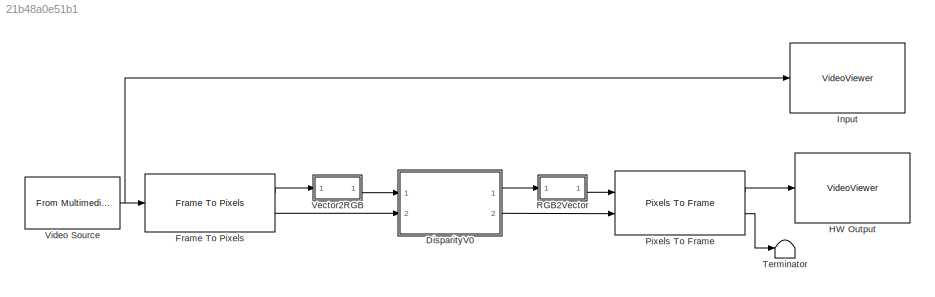
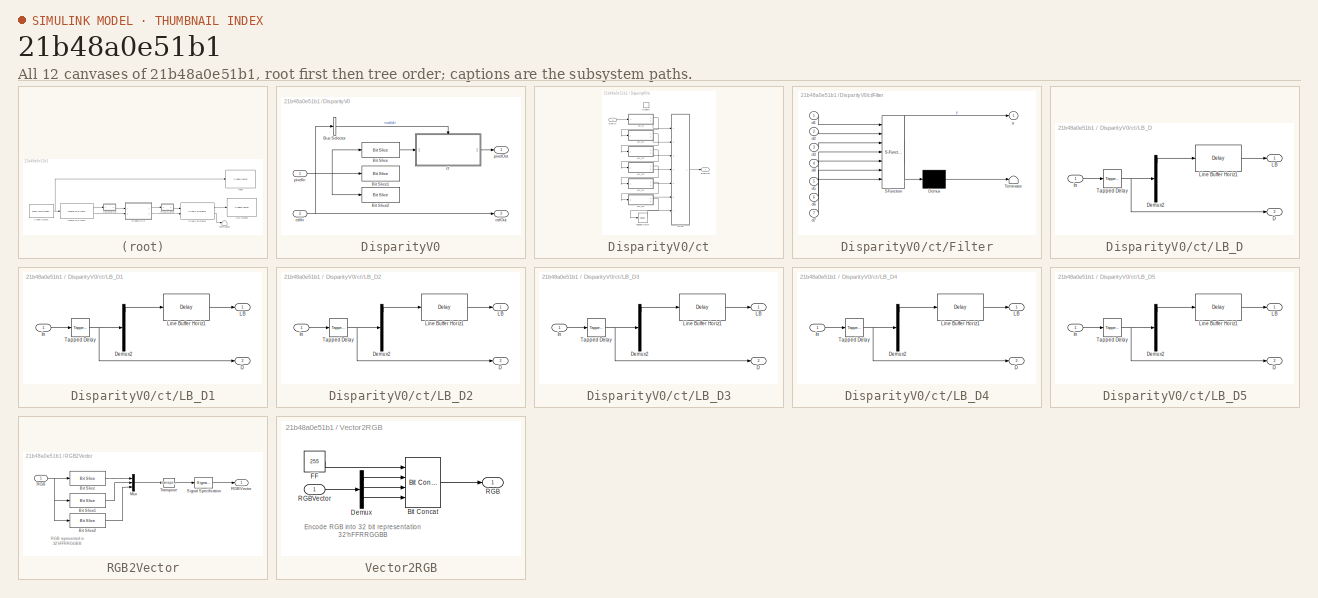
[diagram: thumbnail index - all 12 canvases of the model, root first then tree order]
MODEL slx_21b48a0e51b1
KIND model
CONFIG AbsTol = auto
CONFIG EnableMultiTasking = off
CONFIG FixedStep = auto
CONFIG InitFcn = Ts = 1e-3;\nTs_240p = 402*324*Ts;\nTs_480p = 525*800*Ts;\n\n
CONFIG MaxStep = auto
CONFIG MinStep = auto
CONFIG RelTol = 1e-3
CONFIG SampleTimeConstraint = Unconstrained
CONFIG SolverName = VariableStepAuto
CONFIG StartTime = 0.0
CONFIG StopTime = Ts_480p*2
BLOCK [SubSystem] DisparityV0
  Ports = [2, 2]
  RequestExecContextInheritance = off
  TreatAsAtomicUnit = on
BLOCK [Reference] DisparityV0/Bit Slice  REF=hdlsllib/Logic and Bit
Operations/Bit Slice
  Ports = [1, 1]
  SourceBlock = hdlsllib/Logic and Bit\nOperations/Bit Slice
  SourceProductBaseCode = SL
  SourceType = Bit Slice
BLOCK [Reference] DisparityV0/Bit Slice1  REF=hdlsllib/Logic and Bit
Operations/Bit Slice
  Ports = [1, 1]
  SourceBlock = hdlsllib/Logic and Bit\nOperations/Bit Slice
  SourceProductBaseCode = SL
  SourceType = Bit Slice
BLOCK [Reference] DisparityV0/Bit Slice2  REF=hdlsllib/Logic and Bit
Operations/Bit Slice
  Ports = [1, 1]
  SourceBlock = hdlsllib/Logic and Bit\nOperations/Bit Slice
  SourceProductBaseCode = SL
  SourceType = Bit Slice
BLOCK [BusSelector] DisparityV0/Bus Selector
  OutputSignals = valid
  Ports = [1, 1]
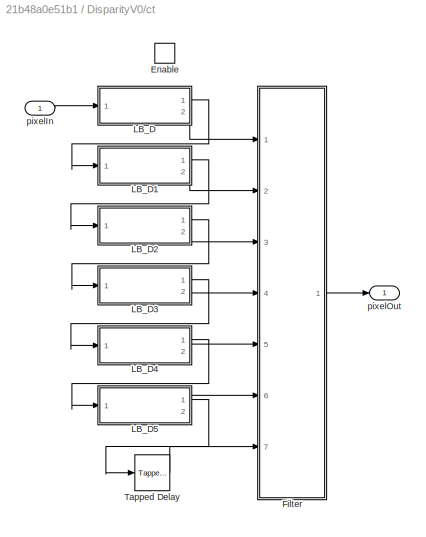
BLOCK [SubSystem] DisparityV0/ct
  Ports = [1, 1, 1]
  RequestExecContextInheritance = off
BLOCK [EnablePort] DisparityV0/ct/Enable
  Ports = []
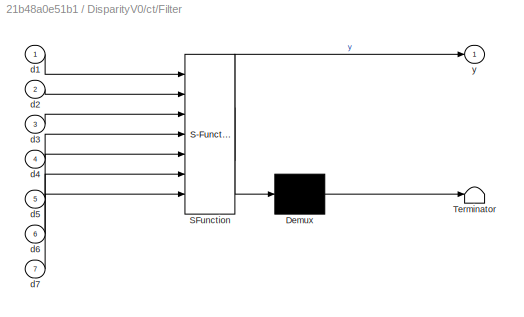
BLOCK [SubSystem] DisparityV0/ct/Filter
  ErrorFcn = Stateflow.Translate.translate
  PermitHierarchicalResolution = ExplicitOnly
  Ports = [7, 1]
  RequestExecContextInheritance = off
  SFBlockType = MATLAB Function
  TreatAsAtomicUnit = on
BLOCK [Demux] DisparityV0/ct/Filter/ Demux 
  Outputs = 1
  Ports = [1, 1]
BLOCK [S-Function] DisparityV0/ct/Filter/ SFunction 
  EnableBusSupport = on
  FunctionName = sf_sfun
  PortCounts = [7 2]
  Ports = [7, 2]
  SFcnIsStateOwnerBlock = off
  SFunctionDeploymentMode = off
  Tag = Stateflow S-Function 2
BLOCK [Terminator] DisparityV0/ct/Filter/ Terminator 
BLOCK [Inport] DisparityV0/ct/Filter/d1
BLOCK [Inport] DisparityV0/ct/Filter/d2
  Port = 2
BLOCK [Inport] DisparityV0/ct/Filter/d3
  Port = 3
BLOCK [Inport] DisparityV0/ct/Filter/d4
  Port = 4
BLOCK [Inport] DisparityV0/ct/Filter/d5
  Port = 5
BLOCK [Inport] DisparityV0/ct/Filter/d6
  Port = 6
BLOCK [Inport] DisparityV0/ct/Filter/d7
  Port = 7
BLOCK [Outport] DisparityV0/ct/Filter/y
BLOCK [SubSystem] DisparityV0/ct/LB_D
  Ports = [1, 2]
  RequestExecContextInheritance = off
BLOCK [Outport] DisparityV0/ct/LB_D/D
  Port = 2
BLOCK [Demux] DisparityV0/ct/LB_D/Demux2
  DisplayOption = none
  Outputs = 5
  Ports = [1, 5]
BLOCK [Inport] DisparityV0/ct/LB_D/In
BLOCK [Outport] DisparityV0/ct/LB_D/LB
BLOCK [Delay] DisparityV0/ct/LB_D/Line Buffer Horiz1
  DelayLength = 632
  InitialCondition = 0
  InputPortMap = u0
  Ports = [1, 1]
BLOCK [Reference] DisparityV0/ct/LB_D/Tapped Delay  REF=simulink/Discrete/Tapped Delay
  Ports = [1, 1]
  SourceBlock = simulink/Discrete/Tapped Delay
  SourceProductBaseCode = SL
  SourceType = Tapped Delay Line
BLOCK [SubSystem] DisparityV0/ct/LB_D1
  Ports = [1, 2]
  RequestExecContextInheritance = off
BLOCK [Outport] DisparityV0/ct/LB_D1/D
  Port = 2
BLOCK [Demux] DisparityV0/ct/LB_D1/Demux2
  DisplayOption = none
  Outputs = 5
  Ports = [1, 5]
BLOCK [Inport] DisparityV0/ct/LB_D1/In
BLOCK [Outport] DisparityV0/ct/LB_D1/LB
BLOCK [Delay] DisparityV0/ct/LB_D1/Line Buffer Horiz1
  DelayLength = 632
  InitialCondition = 0
  InputPortMap = u0
  Ports = [1, 1]
BLOCK [Reference] DisparityV0/ct/LB_D1/Tapped Delay  REF=simulink/Discrete/Tapped Delay
  Ports = [1, 1]
  SourceBlock = simulink/Discrete/Tapped Delay
  SourceProductBaseCode = SL
  SourceType = Tapped Delay Line
BLOCK [SubSystem] DisparityV0/ct/LB_D2
  Ports = [1, 2]
  RequestExecContextInheritance = off
BLOCK [Outport] DisparityV0/ct/LB_D2/D
  Port = 2
BLOCK [Demux] DisparityV0/ct/LB_D2/Demux2
  DisplayOption = none
  Outputs = 5
  Ports = [1, 5]
BLOCK [Inport] DisparityV0/ct/LB_D2/In
BLOCK [Outport] DisparityV0/ct/LB_D2/LB
BLOCK [Delay] DisparityV0/ct/LB_D2/Line Buffer Horiz1
  DelayLength = 632
  InitialCondition = 0
  InputPortMap = u0
  Ports = [1, 1]
BLOCK [Reference] DisparityV0/ct/LB_D2/Tapped Delay  REF=simulink/Discrete/Tapped Delay
  Ports = [1, 1]
  SourceBlock = simulink/Discrete/Tapped Delay
  SourceProductBaseCode = SL
  SourceType = Tapped Delay Line
BLOCK [SubSystem] DisparityV0/ct/LB_D3
  Ports = [1, 2]
  RequestExecContextInheritance = off
BLOCK [Outport] DisparityV0/ct/LB_D3/D
  Port = 2
BLOCK [Demux] DisparityV0/ct/LB_D3/Demux2
  DisplayOption = none
  Outputs = 5
  Ports = [1, 5]
BLOCK [Inport] DisparityV0/ct/LB_D3/In
BLOCK [Outport] DisparityV0/ct/LB_D3/LB
BLOCK [Delay] DisparityV0/ct/LB_D3/Line Buffer Horiz1
  DelayLength = 632
  InitialCondition = 0
  InputPortMap = u0
  Ports = [1, 1]
BLOCK [Reference] DisparityV0/ct/LB_D3/Tapped Delay  REF=simulink/Discrete/Tapped Delay
  Ports = [1, 1]
  SourceBlock = simulink/Discrete/Tapped Delay
  SourceProductBaseCode = SL
  SourceType = Tapped Delay Line
BLOCK [SubSystem] DisparityV0/ct/LB_D4
  Ports = [1, 2]
  RequestExecContextInheritance = off
BLOCK [Outport] DisparityV0/ct/LB_D4/D
  Port = 2
BLOCK [Demux] DisparityV0/ct/LB_D4/Demux2
  DisplayOption = none
  Outputs = 5
  Ports = [1, 5]
BLOCK [Inport] DisparityV0/ct/LB_D4/In
BLOCK [Outport] DisparityV0/ct/LB_D4/LB
BLOCK [Delay] DisparityV0/ct/LB_D4/Line Buffer Horiz1
  DelayLength = 632
  InitialCondition = 0
  InputPortMap = u0
  Ports = [1, 1]
BLOCK [Reference] DisparityV0/ct/LB_D4/Tapped Delay  REF=simulink/Discrete/Tapped Delay
  Ports = [1, 1]
  SourceBlock = simulink/Discrete/Tapped Delay
  SourceProductBaseCode = SL
  SourceType = Tapped Delay Line
BLOCK [SubSystem] DisparityV0/ct/LB_D5
  Ports = [1, 2]
  RequestExecContextInheritance = off
BLOCK [Outport] DisparityV0/ct/LB_D5/D
  Port = 2
BLOCK [Demux] DisparityV0/ct/LB_D5/Demux2
  DisplayOption = none
  Outputs = 5
  Ports = [1, 5]
BLOCK [Inport] DisparityV0/ct/LB_D5/In
BLOCK [Outport] DisparityV0/ct/LB_D5/LB
BLOCK [Delay] DisparityV0/ct/LB_D5/Line Buffer Horiz1
  DelayLength = 632
  InitialCondition = 0
  InputPortMap = u0
  Ports = [1, 1]
BLOCK [Reference] DisparityV0/ct/LB_D5/Tapped Delay  REF=simulink/Discrete/Tapped Delay
  Ports = [1, 1]
  SourceBlock = simulink/Discrete/Tapped Delay
  SourceProductBaseCode = SL
  SourceType = Tapped Delay Line
BLOCK [Reference] DisparityV0/ct/Tapped Delay  REF=simulink/Discrete/Tapped Delay
  Ports = [1, 1]
  SourceBlock = simulink/Discrete/Tapped Delay
  SourceProductBaseCode = SL
  SourceType = Tapped Delay Line
BLOCK [Inport] DisparityV0/ct/pixelIn
BLOCK [Outport] DisparityV0/ct/pixelOut
  InitialOutput = 0
BLOCK [Inport] DisparityV0/ctrlIn
  Port = 2
BLOCK [Outport] DisparityV0/ctrlOut
  Port = 2
  VectorParamsAs1DForOutWhenUnconnected = off
BLOCK [Inport] DisparityV0/pixelIn
BLOCK [Outport] DisparityV0/pixelOut
BLOCK [Reference] Frame To Pixels  REF=visionhdlio/Frame To Pixels
  Ports = [1, 2]
  SourceBlock = visionhdlio/Frame To Pixels
  SourceProductBaseCode = VT
  SourceType = Frame To Pixels
BLOCK [VideoViewer] HW Output
  FigPos = [146 735 588 436]
  Ports = [1]
  ScopeSpecificationString = vipscopes.VideoViewerScopeCfg('CurrentConfiguration', extmgr.ConfigurationSet(extmgr.Configuration('Core','General UI',true),extmgr.Configuration('Core','Source UI',true),extmgr.Configuration('Sources','WiredSimulink',true),extmgr.Configuration('Sources','Streaming',false),extmgr.Configuration('Sources','SimulinkEvent',false),extmgr.Configuration('Sources','Workspace',false),extmgr.Configuration('...<+972ch>
  colormapValue = gray(256)
BLOCK [VideoViewer] Input
  FigPos = [86 739 588 436]
  Ports = [1]
  ScopeSpecificationString = vipscopes.VideoViewerScopeCfg('CurrentConfiguration', extmgr.ConfigurationSet(extmgr.Configuration('Core','General UI',true),extmgr.Configuration('Core','Source UI',true),extmgr.Configuration('Sources','WiredSimulink',true),extmgr.Configuration('Sources','Streaming',false),extmgr.Configuration('Sources','SimulinkEvent',false),extmgr.Configuration('Sources','Workspace',false),extmgr.Configuration('...<+971ch>
  colormapValue = gray(256)
BLOCK [Reference] Pixels To Frame  REF=visionhdlio/Pixels To Frame
  Ports = [2, 2]
  SourceBlock = visionhdlio/Pixels To Frame
  SourceProductBaseCode = VT
  SourceType = Pixels To Frame
BLOCK [SubSystem] RGB2Vector
  Ports = [1, 1]
  RequestExecContextInheritance = off
  ShowPortLabels = none
BLOCK [Reference] RGB2Vector/Bit Slice  REF=hdlsllib/Logic and Bit
Operations/Bit Slice
  Ports = [1, 1]
  SourceBlock = hdlsllib/Logic and Bit\nOperations/Bit Slice
  SourceProductBaseCode = SL
  SourceType = Bit Slice
BLOCK [Reference] RGB2Vector/Bit Slice1  REF=hdlsllib/Logic and Bit
Operations/Bit Slice
  Ports = [1, 1]
  SourceBlock = hdlsllib/Logic and Bit\nOperations/Bit Slice
  SourceProductBaseCode = SL
  SourceType = Bit Slice
BLOCK [Reference] RGB2Vector/Bit Slice2  REF=hdlsllib/Logic and Bit
Operations/Bit Slice
  Ports = [1, 1]
  SourceBlock = hdlsllib/Logic and Bit\nOperations/Bit Slice
  SourceProductBaseCode = SL
  SourceType = Bit Slice
BLOCK [Mux] RGB2Vector/Mux
  DisplayOption = bar
  Inputs = 3
  Ports = [3, 1]
BLOCK [Inport] RGB2Vector/RGB
BLOCK [Outport] RGB2Vector/RGBVector
  VectorParamsAs1DForOutWhenUnconnected = off
BLOCK [SignalSpecification] RGB2Vector/Signal Specification
  SignalType = real
BLOCK [Math] RGB2Vector/Transpose
  Operator = transpose
  Ports = [1, 1]
  SignedPower = on
BLOCK [Terminator] Terminator
BLOCK [SubSystem] Vector2RGB
  Ports = [1, 1]
  RequestExecContextInheritance = off
  ShowPortLabels = none
BLOCK [Reference] Vector2RGB/Bit Concat  REF=hdlsllib/Logic and Bit
Operations/Bit Concat
  Ports = [4, 1]
  SourceBlock = hdlsllib/Logic and Bit\nOperations/Bit Concat
  SourceProductBaseCode = SL
  SourceType = Bit Concat
BLOCK [Demux] Vector2RGB/Demux
  Outputs = 3
  Ports = [1, 3]
BLOCK [Constant] Vector2RGB/FF
  OutDataTypeStr = uint8
  SampleTime = Ts
  Value = 255
BLOCK [Outport] Vector2RGB/RGB
  VectorParamsAs1DForOutWhenUnconnected = off
BLOCK [Inport] Vector2RGB/RGBVector
BLOCK [Reference] Video Source  REF=dspvision/From Multimedia File
  Ports = [0, 1]
  SourceBlock = dspvision/From Multimedia File
  SourceProductBaseCode = DS,HW,VP
  SourceType = From Multimedia File
ANNOTATION RGB2Vector: RGB represented in 32'hFFRRGGBB
ANNOTATION Vector2RGB: Encode RGB into 32 bit representation 32'hFFRRGGBB
LINE DisparityV0/Bit Slice:1 -> DisparityV0/ct:1
LINE DisparityV0/Bus Selector:1 -> DisparityV0/ct:enable
LINE DisparityV0/ct/Filter:1 -> DisparityV0/ct/pixelOut:1
LINE DisparityV0/ct/LB_D/Demux2:1 -> DisparityV0/ct/LB_D/Line Buffer Horiz1:1
LINE DisparityV0/ct/LB_D/In:1 -> DisparityV0/ct/LB_D/Tapped Delay:1
LINE DisparityV0/ct/LB_D/Line Buffer Horiz1:1 -> DisparityV0/ct/LB_D/LB:1
NET DisparityV0/ct/LB_D/Tapped Delay:1 -> DisparityV0/ct/LB_D/D:1, DisparityV0/ct/LB_D/Demux2:1
LINE DisparityV0/ct/LB_D1/Demux2:1 -> DisparityV0/ct/LB_D1/Line Buffer Horiz1:1
LINE DisparityV0/ct/LB_D1/In:1 -> DisparityV0/ct/LB_D1/Tapped Delay:1
LINE DisparityV0/ct/LB_D1/Line Buffer Horiz1:1 -> DisparityV0/ct/LB_D1/LB:1
NET DisparityV0/ct/LB_D1/Tapped Delay:1 -> DisparityV0/ct/LB_D1/D:1, DisparityV0/ct/LB_D1/Demux2:1
LINE DisparityV0/ct/LB_D1:1 -> DisparityV0/ct/LB_D2:1
LINE DisparityV0/ct/LB_D1:2 -> DisparityV0/ct/Filter:2
LINE DisparityV0/ct/LB_D2/Demux2:1 -> DisparityV0/ct/LB_D2/Line Buffer Horiz1:1
LINE DisparityV0/ct/LB_D2/In:1 -> DisparityV0/ct/LB_D2/Tapped Delay:1
LINE DisparityV0/ct/LB_D2/Line Buffer Horiz1:1 -> DisparityV0/ct/LB_D2/LB:1
NET DisparityV0/ct/LB_D2/Tapped Delay:1 -> DisparityV0/ct/LB_D2/D:1, DisparityV0/ct/LB_D2/Demux2:1
LINE DisparityV0/ct/LB_D2:1 -> DisparityV0/ct/LB_D3:1
LINE DisparityV0/ct/LB_D2:2 -> DisparityV0/ct/Filter:3
LINE DisparityV0/ct/LB_D3/Demux2:1 -> DisparityV0/ct/LB_D3/Line Buffer Horiz1:1
LINE DisparityV0/ct/LB_D3/In:1 -> DisparityV0/ct/LB_D3/Tapped Delay:1
LINE DisparityV0/ct/LB_D3/Line Buffer Horiz1:1 -> DisparityV0/ct/LB_D3/LB:1
NET DisparityV0/ct/LB_D3/Tapped Delay:1 -> DisparityV0/ct/LB_D3/D:1, DisparityV0/ct/LB_D3/Demux2:1
LINE DisparityV0/ct/LB_D3:1 -> DisparityV0/ct/LB_D4:1
LINE DisparityV0/ct/LB_D3:2 -> DisparityV0/ct/Filter:4
LINE DisparityV0/ct/LB_D4/Demux2:1 -> DisparityV0/ct/LB_D4/Line Buffer Horiz1:1
LINE DisparityV0/ct/LB_D4/In:1 -> DisparityV0/ct/LB_D4/Tapped Delay:1
LINE DisparityV0/ct/LB_D4/Line Buffer Horiz1:1 -> DisparityV0/ct/LB_D4/LB:1
NET DisparityV0/ct/LB_D4/Tapped Delay:1 -> DisparityV0/ct/LB_D4/D:1, DisparityV0/ct/LB_D4/Demux2:1
LINE DisparityV0/ct/LB_D4:1 -> DisparityV0/ct/LB_D5:1
LINE DisparityV0/ct/LB_D4:2 -> DisparityV0/ct/Filter:5
LINE DisparityV0/ct/LB_D5/Demux2:1 -> DisparityV0/ct/LB_D5/Line Buffer Horiz1:1
LINE DisparityV0/ct/LB_D5/In:1 -> DisparityV0/ct/LB_D5/Tapped Delay:1
LINE DisparityV0/ct/LB_D5/Line Buffer Horiz1:1 -> DisparityV0/ct/LB_D5/LB:1
NET DisparityV0/ct/LB_D5/Tapped Delay:1 -> DisparityV0/ct/LB_D5/D:1, DisparityV0/ct/LB_D5/Demux2:1
LINE DisparityV0/ct/LB_D5:1 -> DisparityV0/ct/Tapped Delay:1
LINE DisparityV0/ct/LB_D5:2 -> DisparityV0/ct/Filter:6
LINE DisparityV0/ct/LB_D:1 -> DisparityV0/ct/LB_D1:1
LINE DisparityV0/ct/LB_D:2 -> DisparityV0/ct/Filter:1
LINE DisparityV0/ct/Tapped Delay:1 -> DisparityV0/ct/Filter:7
LINE DisparityV0/ct/pixelIn:1 -> DisparityV0/ct/LB_D:1
LINE DisparityV0/ct:1 -> DisparityV0/pixelOut:1
NET DisparityV0/ctrlIn:1 -> DisparityV0/Bus Selector:1, DisparityV0/ctrlOut:1
NET DisparityV0/pixelIn:1 -> DisparityV0/Bit Slice1:1, DisparityV0/Bit Slice2:1, DisparityV0/Bit Slice:1
LINE DisparityV0:1 -> RGB2Vector:1
LINE DisparityV0:2 -> Pixels To Frame:2
LINE Frame To Pixels:1 -> Vector2RGB:1
LINE Frame To Pixels:2 -> DisparityV0:2
LINE Pixels To Frame:1 -> HW Output:1
LINE Pixels To Frame:2 -> Terminator:1
LINE RGB2Vector/Bit Slice1:1 -> RGB2Vector/Mux:2
LINE RGB2Vector/Bit Slice2:1 -> RGB2Vector/Mux:3
LINE RGB2Vector/Bit Slice:1 -> RGB2Vector/Mux:1
LINE RGB2Vector/Mux:1 -> RGB2Vector/Transpose:1
NET RGB2Vector/RGB:1 -> RGB2Vector/Bit Slice1:1, RGB2Vector/Bit Slice2:1, RGB2Vector/Bit Slice:1
LINE RGB2Vector/Signal Specification:1 -> RGB2Vector/RGBVector:1
LINE RGB2Vector/Transpose:1 -> RGB2Vector/Signal Specification:1
LINE RGB2Vector:1 -> Pixels To Frame:1
LINE Vector2RGB/Bit Concat:1 -> Vector2RGB/RGB:1
LINE Vector2RGB/Demux:1 -> Vector2RGB/Bit Concat:2
LINE Vector2RGB/Demux:2 -> Vector2RGB/Bit Concat:3
LINE Vector2RGB/Demux:3 -> Vector2RGB/Bit Concat:4
LINE Vector2RGB/FF:1 -> Vector2RGB/Bit Concat:1
LINE Vector2RGB/RGBVector:1 -> Vector2RGB/Demux:1
LINE Vector2RGB:1 -> DisparityV0:1
NET Video Source:1 -> Frame To Pixels:1, Input:1
note: NET lines group one-source signal fan-out (src -> all destinations, sorted); 1:1 wires keep LINE
CHART DisparityV0/ct/Filter states=1 transitions=1
  STATE_LABEL 'eML_blk_kernel()'
  STATE_LABEL "SCRIPT:\nfunction y = fcn(d1,d2,d3,d4,d5,d6,d7)\nd = [d1,d2,d3,d4,d5,d6,d7]'; %7x9 matrix\nd = fliplr(d);\n% d = fi(d,0,8,0);\n\nc1 = d(7,9)>d(1,1);\nc2 = d(7,8)>d(1,2);\nc3 = d(7,7)>d(1,3);\nc4 = d(7,6)>d(1,4);\nc5 = d(7,5)>d(1,5);\nc6 = d(7,4)>d(1,6);\nc7 = d(7,3)>d(1,7);\nc8 = d(7,2)>d(1,8);\nc9 = d(7,1)>d(1,9);\nc10 = d(6,9)>d(2,1);\nc11 = d(6,8)>d(2,2);\nc12 = d(6,7)>d(2,3);\nc13 = d(6,6)>d(2,4);\nc14 = d(6,5)>...<+1145ch>"
CHART  states=0 transitions=0
